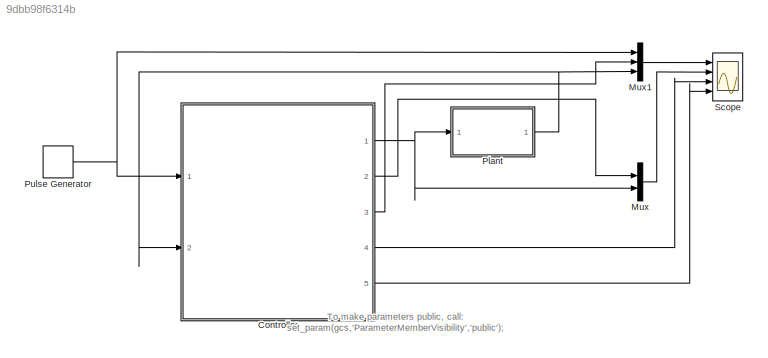
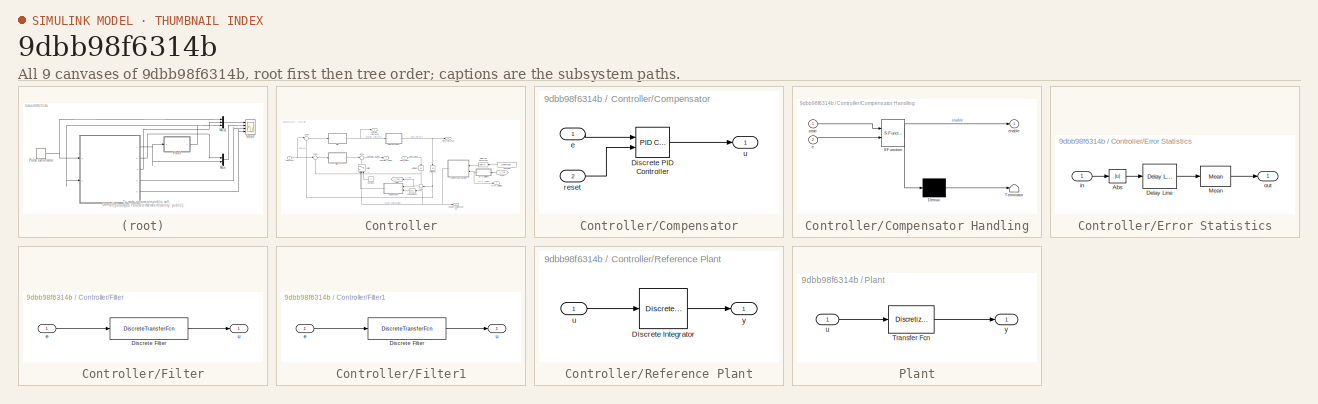
[diagram: thumbnail index - all 9 canvases of the model, root first then tree order]
MODEL slx_9dbb98f6314b
KIND model
CONFIG AbsTol = auto
CONFIG EnableMultiTasking = on
CONFIG FixedStep = 0.01
CONFIG InitFcn = set_param(gcs,'ParameterMemberVisibility','public');
CONFIG MaxStep = auto
CONFIG MinStep = auto
CONFIG RelTol = 1e-3
CONFIG SampleTimeConstraint = Unconstrained
CONFIG Solver = FixedStepDiscrete
CONFIG SolverName = FixedStepDiscrete
CONFIG StartTime = 0.0
CONFIG StopTime = 100
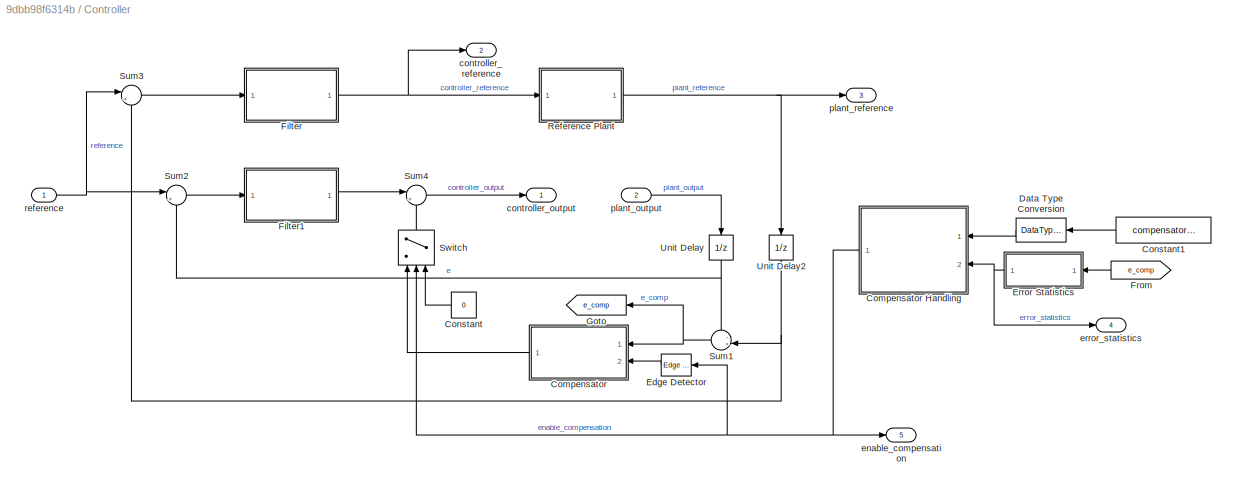
BLOCK [SubSystem] Controller
  Ports = [2, 5]
  RequestExecContextInheritance = off
  ShowPortLabels = SignalName
  TreatAsAtomicUnit = on
BLOCK [SubSystem] Controller/Compensator
  Ports = [2, 1]
  RTWFcnName = Compensator
  RTWFcnNameOpts = User specified
  RTWSystemCode = Reusable function
  RequestExecContextInheritance = off
  TreatAsAtomicUnit = on
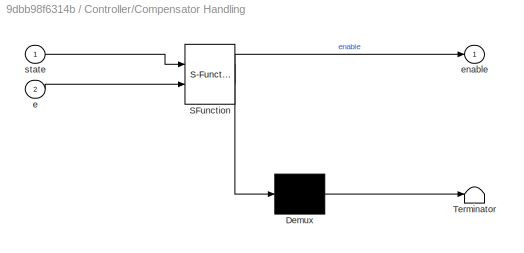
BLOCK [SubSystem] Controller/Compensator Handling
  ErrorFcn = Stateflow.Translate.translate
  PermitHierarchicalResolution = ExplicitOnly
  Ports = [2, 1]
  RequestExecContextInheritance = off
  SFBlockType = Chart
  TreatAsAtomicUnit = on
BLOCK [Demux] Controller/Compensator Handling/ Demux 
  Outputs = 1
  Ports = [1, 1]
BLOCK [S-Function] Controller/Compensator Handling/ SFunction 
  EnableBusSupport = on
  FunctionName = sf_sfun
  Parameters = AutoCompensator_ThresHystMax,AutoCompensator_ThresHystMin
  PortCounts = [2 2]
  Ports = [2, 2]
  SFcnIsStateOwnerBlock = off
  SFunctionDeploymentMode = off
  Tag = Stateflow S-Function 3
BLOCK [Terminator] Controller/Compensator Handling/ Terminator 
BLOCK [Inport] Controller/Compensator Handling/e
  Port = 2
BLOCK [Outport] Controller/Compensator Handling/enable
BLOCK [Inport] Controller/Compensator Handling/state
BLOCK [Reference] Controller/Compensator/Discrete PID Controller  REF=simulink/Continuous/PID Controller
  NameLocation = top
  Ports = [2, 1]
  SourceBlock = simulink/Continuous/PID Controller
  SourceProductBaseCode = SL
  SourceType = PID 1dof
BLOCK [Inport] Controller/Compensator/e
BLOCK [Inport] Controller/Compensator/reset
  Port = 2
BLOCK [Outport] Controller/Compensator/u
BLOCK [Constant] Controller/Constant
  Value = 0
BLOCK [Constant] Controller/Constant1
  OutDataTypeStr = Enum: CompensatorState
  Value = compensator_state
BLOCK [DataTypeConversion] Controller/Data Type Conversion
  RndMeth = Floor
  SaturateOnIntegerOverflow = off
BLOCK [Reference] Controller/Edge Detector  REF=powerlib_meascontrol/Logic/Edge Detector
  Ports = [1, 1]
  SourceBlock = powerlib_meascontrol/Logic/Edge Detector
  SourceProductBaseCode = PS
  SourceType = Edge Detector
BLOCK [SubSystem] Controller/Error Statistics
  Ports = [1, 1]
  RTWFcnName = ErrorStatistics
  RTWFcnNameOpts = User specified
  RTWSystemCode = Reusable function
  RequestExecContextInheritance = off
  TreatAsAtomicUnit = on
BLOCK [Abs] Controller/Error Statistics/Abs
  SaturateOnIntegerOverflow = off
BLOCK [Reference] Controller/Error Statistics/Delay Line  REF=dspbuff3/Delay Line
  Ports = [1, 1]
  SourceBlock = dspbuff3/Delay Line
  SourceProductBaseCode = DS
  SourceType = Delay Line
  UserDataPersistent = on
BLOCK [Reference] Controller/Error Statistics/Mean  REF=dspstat3/Mean
  Ports = [1, 1]
  SourceBlock = dspstat3/Mean
  SourceProductBaseCode = DS
  SourceType = Mean
  UserDataPersistent = on
BLOCK [Inport] Controller/Error Statistics/in
BLOCK [Outport] Controller/Error Statistics/out
BLOCK [SubSystem] Controller/Filter
  Ports = [1, 1]
  RTWFcnName = Filter
  RTWFcnNameOpts = User specified
  RTWSystemCode = Reusable function
  RequestExecContextInheritance = off
  TreatAsAtomicUnit = on
BLOCK [DiscreteTransferFcn] Controller/Filter/Discrete Filter
  Denominator = [1 -1.921 0.9231]
  InputPortMap = u0
  Numerator = [4.5e-4 9e-4 4.5e-4]
  Ports = [1, 1]
  SampleTime = 0.01
BLOCK [Inport] Controller/Filter/e
BLOCK [Outport] Controller/Filter/u
BLOCK [SubSystem] Controller/Filter1
  Ports = [1, 1]
  RTWFcnName = Filter
  RTWFcnNameOpts = User specified
  RTWSystemCode = Reusable function
  RequestExecContextInheritance = off
  TreatAsAtomicUnit = on
BLOCK [DiscreteTransferFcn] Controller/Filter1/Discrete Filter
  Denominator = [1 -1.921 0.9231]
  InputPortMap = u0
  Numerator = [4.5e-4 9e-4 4.5e-4]
  Ports = [1, 1]
  SampleTime = 0.01
BLOCK [Inport] Controller/Filter1/e
BLOCK [Outport] Controller/Filter1/u
BLOCK [From] Controller/From
  GotoTag = e_comp
BLOCK [Goto] Controller/Goto
  GotoTag = e_comp
BLOCK [SubSystem] Controller/Reference Plant
  Ports = [1, 1]
  RTWFcnName = ReferencePlant
  RTWFcnNameOpts = User specified
  RTWSystemCode = Reusable function
  RequestExecContextInheritance = off
  TreatAsAtomicUnit = on
BLOCK [DiscreteIntegrator] Controller/Reference Plant/Discrete Integrator
  ICPrevOutput = DiscIntNeverNeededParam
  ICPrevScaledInput = DiscIntNeverNeededParam
  InitialCondition = Plant_IC
  InitialConditionSetting = Auto
  IntegratorMethod = Integration: Trapezoidal
  LimitOutput = on
  LowerSaturationLimit = Plant_Min
  Ports = [1, 1]
  SampleTime = 0.01
  UpperSaturationLimit = Plant_Max
BLOCK [Inport] Controller/Reference Plant/u
BLOCK [Outport] Controller/Reference Plant/y
BLOCK [Sum] Controller/Sum1
  Inputs = -+|
  Ports = [2, 1]
BLOCK [Sum] Controller/Sum2
  Inputs = |+-
  Ports = [2, 1]
BLOCK [Sum] Controller/Sum3
  Inputs = |+-
  Ports = [2, 1]
BLOCK [Sum] Controller/Sum4
  Inputs = |++
  Ports = [2, 1]
BLOCK [Switch] Controller/Switch
  Criteria = u2 > Threshold
  InputSameDT = off
  NameLocation = left
  SaturateOnIntegerOverflow = off
  Threshold = 0.5
BLOCK [UnitDelay] Controller/Unit Delay
  HasFrameUpgradeWarning = on
  InitialCondition = Plant_IC
  NameLocation = left
  SampleTime = -1
BLOCK [UnitDelay] Controller/Unit Delay2
  HasFrameUpgradeWarning = on
  InitialCondition = Plant_IC
  NameLocation = left
  SampleTime = -1
BLOCK [Outport] Controller/controller_output
BLOCK [Outport] Controller/controller_reference
  Port = 2
BLOCK [Outport] Controller/enable_compensation
  Port = 5
BLOCK [Outport] Controller/error_statistics
  Port = 4
BLOCK [Inport] Controller/plant_output
  Port = 2
BLOCK [Outport] Controller/plant_reference
  Port = 3
BLOCK [Inport] Controller/reference
BLOCK [Mux] Mux
  DisplayOption = bar
  Inputs = 2
  Ports = [2, 1]
BLOCK [Mux] Mux1
  DisplayOption = bar
  Inputs = 3
  Ports = [3, 1]
BLOCK [SubSystem] Plant
  Ports = [1, 1]
  RTWFcnName = Plant
  RTWFcnNameOpts = User specified
  RTWSystemCode = Reusable function
  RequestExecContextInheritance = off
  TreatAsAtomicUnit = on
BLOCK [Reference] Plant/Transfer Fcn  REF=discretizing/Discretized  (lib defined in mdl_5048aa1cd587)
Transfer Fcn
  Ports = [1, 1]
  SourceBlock = discretizing/Discretized\nTransfer Fcn
  SourceProductBaseCode = SL
  SourceType = DiscretizedTransferFcn
BLOCK [Inport] Plant/u
BLOCK [Outport] Plant/y
BLOCK [DiscretePulseGenerator] Pulse Generator
  Period = 20
  Ports = [0, 1]
  PulseType = Time based
  PulseWidth = 50
BLOCK [Scope] Scope
  Floating = off
  NumInputPorts = 4
  Ports = [4]
  ScopeSpecificationString = Simulink.scopes.TimeScopeBlockCfg('CurrentConfiguration', extmgr.ConfigurationSet(extmgr.Configuration('Core','General UI',true,'FigureColor',[1 1 1]),extmgr.Configuration('Core','Source UI',true),extmgr.Configuration('Sources','WiredSimulink',true,'DataLoggingSaveFormat','Array','DataLoggingDecimation','1','DataLoggingDecimateData',true),extmgr.Configuration('Visuals','Time Domain',true,'Serializ...<+7297ch>
ANNOTATION (root): To make parameters public, call: set_param(gcs,'ParameterMemberVisibility','public');
NET Controller/Compensator Handling:1 -> Controller/Edge Detector:1, Controller/Switch:2, Controller/enable_compensation:1
LINE Controller/Compensator/Discrete PID Controller:1 -> Controller/Compensator/u:1
LINE Controller/Compensator/e:1 -> Controller/Compensator/Discrete PID Controller:1
LINE Controller/Compensator/reset:1 -> Controller/Compensator/Discrete PID Controller:2
LINE Controller/Compensator:1 -> Controller/Switch:1
LINE Controller/Constant1:1 -> Controller/Data Type Conversion:1
LINE Controller/Constant:1 -> Controller/Switch:3
LINE Controller/Data Type Conversion:1 -> Controller/Compensator Handling:1
LINE Controller/Edge Detector:1 -> Controller/Compensator:2
LINE Controller/Error Statistics/Abs:1 -> Controller/Error Statistics/Delay Line:1
LINE Controller/Error Statistics/Delay Line:1 -> Controller/Error Statistics/Mean:1
LINE Controller/Error Statistics/Mean:1 -> Controller/Error Statistics/out:1
LINE Controller/Error Statistics/in:1 -> Controller/Error Statistics/Abs:1
NET Controller/Error Statistics:1 -> Controller/Compensator Handling:2, Controller/error_statistics:1
LINE Controller/Filter/Discrete Filter:1 -> Controller/Filter/u:1
LINE Controller/Filter/e:1 -> Controller/Filter/Discrete Filter:1
LINE Controller/Filter1/Discrete Filter:1 -> Controller/Filter1/u:1
LINE Controller/Filter1/e:1 -> Controller/Filter1/Discrete Filter:1
LINE Controller/Filter1:1 -> Controller/Sum4:1
NET Controller/Filter:1 -> Controller/Reference Plant:1, Controller/controller_reference:1
LINE Controller/From:1 -> Controller/Error Statistics:1
LINE Controller/Reference Plant/Discrete Integrator:1 -> Controller/Reference Plant/y:1
LINE Controller/Reference Plant/u:1 -> Controller/Reference Plant/Discrete Integrator:1
NET Controller/Reference Plant:1 -> Controller/Unit Delay2:1, Controller/plant_reference:1
NET Controller/Sum1:1 -> Controller/Compensator:1, Controller/Goto:1
LINE Controller/Sum2:1 -> Controller/Filter1:1
LINE Controller/Sum3:1 -> Controller/Filter:1
LINE Controller/Sum4:1 -> Controller/controller_output:1
LINE Controller/Switch:1 -> Controller/Sum4:2
NET Controller/Unit Delay2:1 -> Controller/Sum1:2, Controller/Sum3:2
NET Controller/Unit Delay:1 -> Controller/Sum1:1, Controller/Sum2:2
LINE Controller/plant_output:1 -> Controller/Unit Delay:1
NET Controller/reference:1 -> Controller/Sum2:1, Controller/Sum3:1
NET Controller:1 -> Mux:2, Plant:1
LINE Controller:2 -> Mux:1
LINE Controller:3 -> Mux1:2
LINE Controller:4 -> Scope:3
LINE Controller:5 -> Scope:4
LINE Mux1:1 -> Scope:1
LINE Mux:1 -> Scope:2
LINE Plant/Transfer Fcn:1 -> Plant/y:1
LINE Plant/u:1 -> Plant/Transfer Fcn:1
NET Plant:1 -> Controller:2, Mux1:3
NET Pulse Generator:1 -> Controller:1, Mux1:1
note: NET lines group one-source signal fan-out (src -> all destinations, sorted); 1:1 wires keep LINE
CHART Controller/Compensator Handling states=3 transitions=11
  STATE_LABEL 'Select\n\n'
  STATE_LABEL 'AutomaticOff\n\nentry:\nenable=false;'
  STATE_LABEL 'AutomaticOn\n\nentry:\nenable=true;'
CHART  states=0 transitions=0
